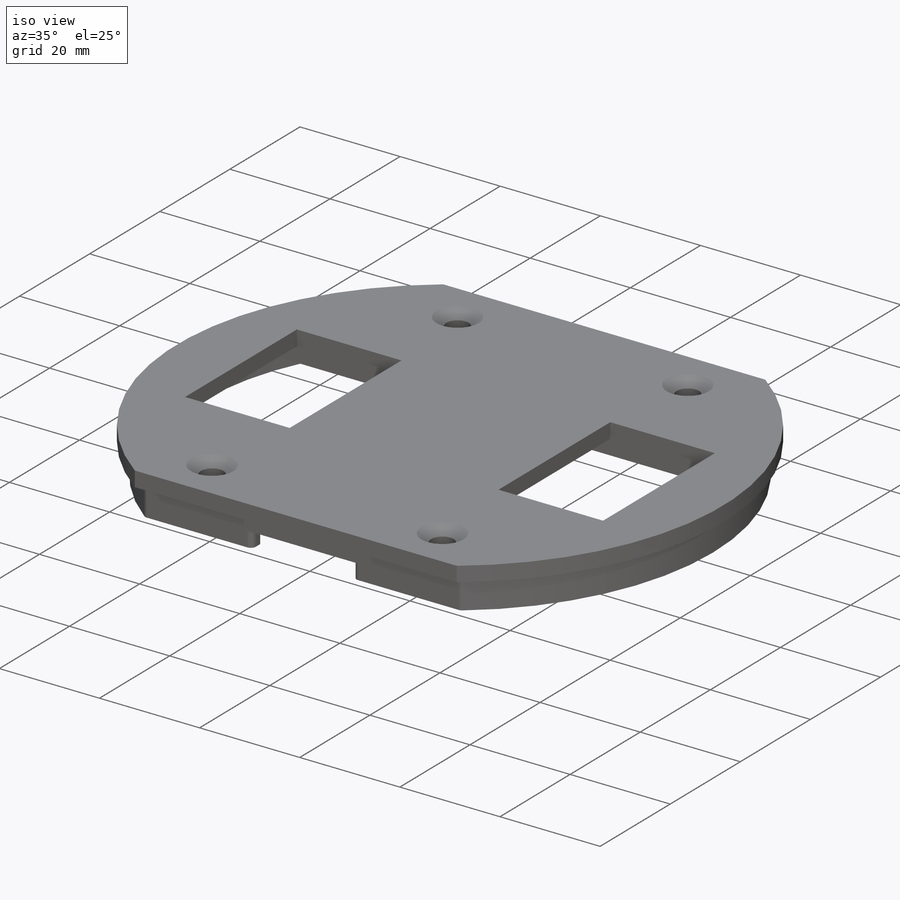
[diagram: iso view]
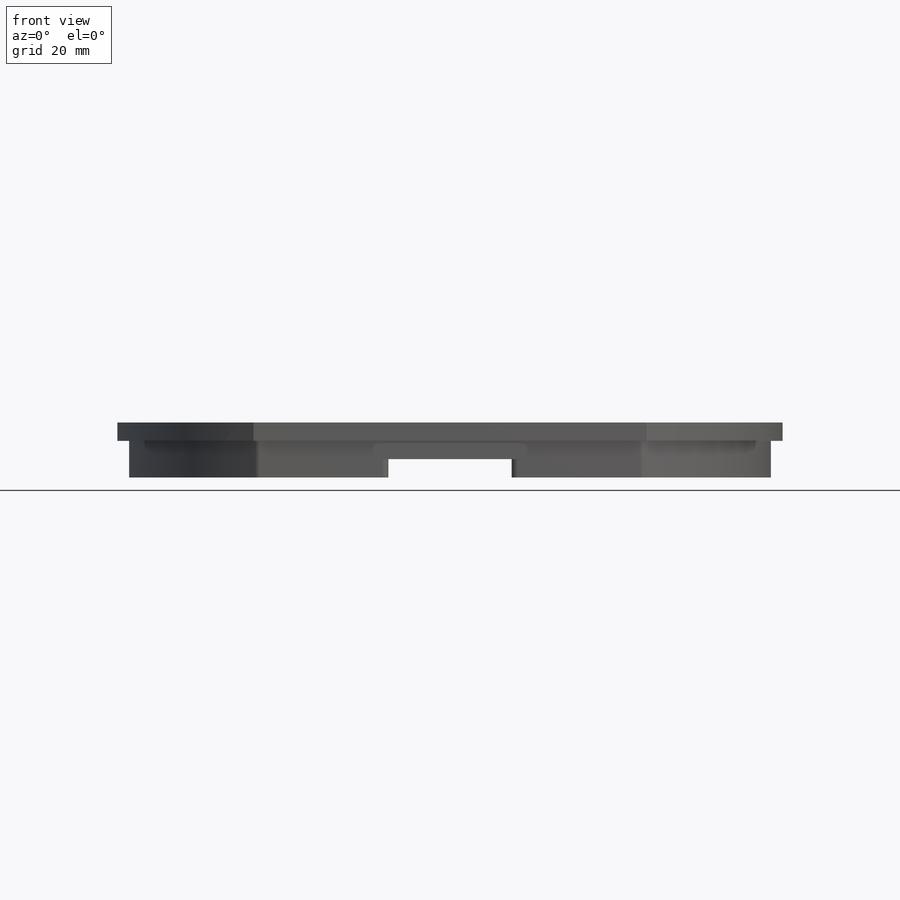
[diagram: front view]
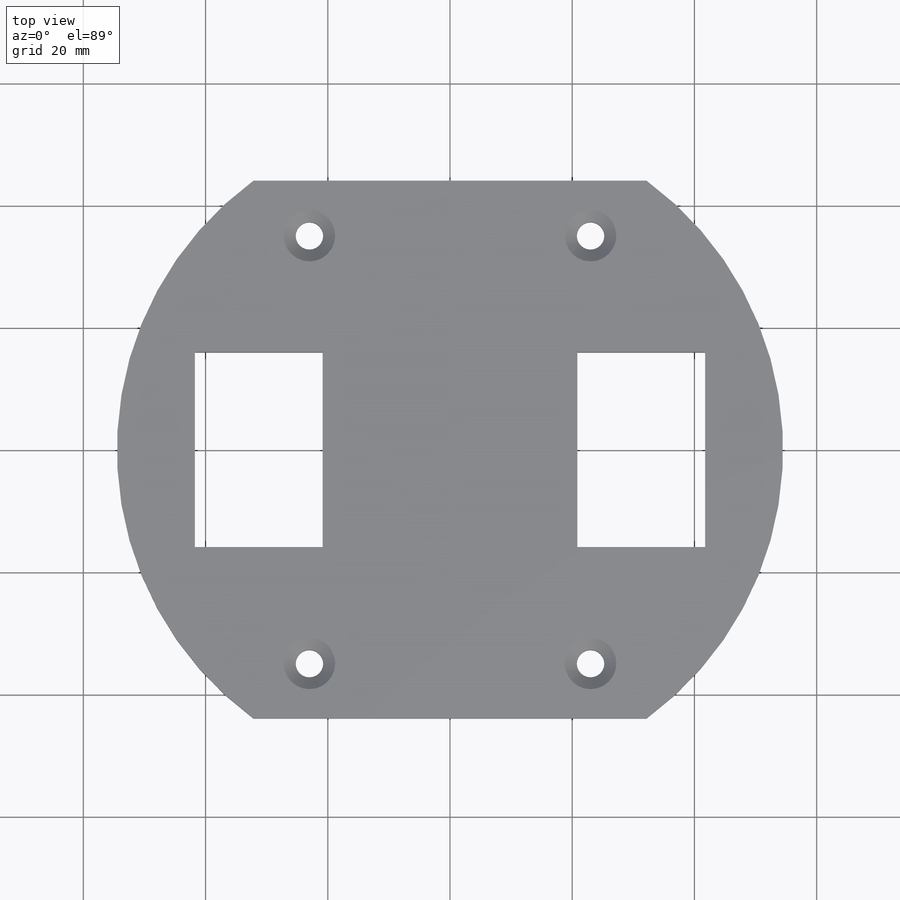
[diagram: top view]
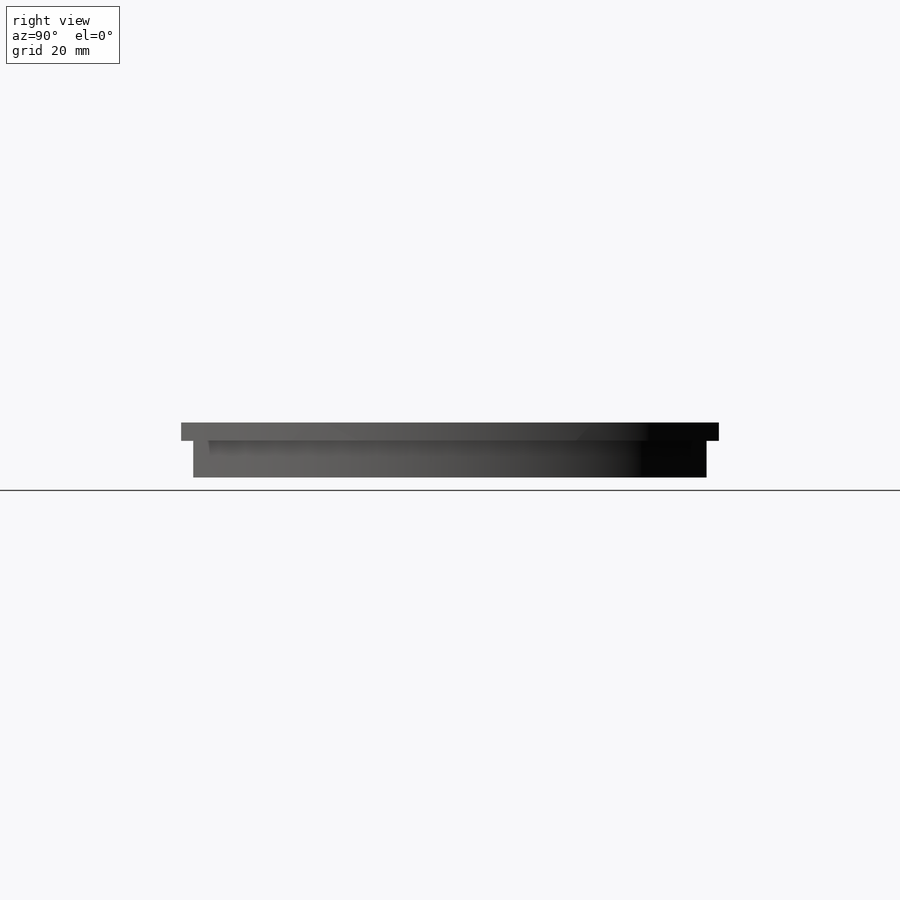
[diagram: right view]
SOLIDWORKS PART (.sldprt)
format: sldprt  version: not decoded by parser v0  size: 2,002,944 bytes
history: native  units: mm
features: sketch x17, cut_extrude x8, extrude x7, material x1, fillet x1, hole x1 + 2 further entries (+25 scaffold rows collapsed; 9 parser-record rows omitted)
feature tree (71):
  scaffold x25  (default folders/planes/origin — collapsed)
  material  "ABS"
  "a_base_t42"
  parser-record x9  (decoder bookkeeping rows leaked as tree rows — omitted from the tree; the rows remain in map.json)
  "params_finger_t42"
  sketch  "Sketch1"  dims[D1=3.0mm]
  extrude  "Support Post Boss"  Depth=3mm
  sketch  "Sketch2"  dims[D1=0.0mm D2=6.0mm]
  extrude  "Inner Boss"  [1 undecoded]
  sketch  "Sketch3"
  cut_extrude  "Clearance - Support Restoration"  [1 undecoded]
  sketch  "Sketch4"  dims[D1=0.0mm D2=2.0mm]
  extrude  "Outer Shell Lip"  Depth=3mm
  sketch  "Sketch5"  dims[D1=0.0mm D2=2.925mm]
  extrude  "Inner Boss Outer Frame"  Depth=3mm
  sketch  "Sketch6"  dims[D1=20.15mm]
  cut_extrude  "Clearance - Flange"  [1 undecoded]
  fillet  "Contouring"  Radius=1mm
  hole  "CSK for #8 Flat Head Machine Screw (100)1"  Diameter=4.3053mm Depth=9mm
  sketch  "Sketch8"
  sketch  "Sketch7"  dims[hole-wizard template sketch: 55 standard entries collapsed; hole parameters kept: c17.Thru Hole Depth=9.0mm c17.Near C'Sink Dia.=8.4328mm c17.D4=~3.666174mm c17.Near C'Sink Angle=100.0deg]
  sketch  "Sketch9"  dims[D1=1.5mm D2=31.9mm D3=38.75mm D4=~26.674948mm]
  cut_extrude  "Clearance - Flexure Base"  [1 undecoded]
  sketch  "Sketch10"  dims[D1=4.0mm D2=4.0mm D3=3.0mm]
  extrude  "Framing - Flexure Base"  [1 undecoded]
  sketch  "Sketch11"
  cut_extrude  "Clearance - Flexure Tab"  [1 undecoded]
  sketch  "Sketch12"  dims[D1=1.5mm D2=31.9mm D3=30.0mm D4=9.15mm]
  cut_extrude  "Clearance - Pivot Base"  [1 undecoded]
  sketch  "Sketch13"  dims[D1=4.0mm D2=4.0mm D3=3.0mm]
  extrude  "Framing - Pivot Base"  [1 undecoded]
  sketch  "Sketch14"
  cut_extrude  "Clearance - Pivot Tab"  [1 undecoded]
  sketch  "Sketch15"  dims[D1=1.575mm D2=31.9mm]
  cut_extrude  "Clearance - Single Base"  [1 undecoded]
  sketch  "Sketch16"  dims[D1=4.0mm D2=3.0mm]
  extrude  "Framing - Single Base"  [1 undecoded]
  sketch  "Sketch17"
  cut_extrude  "Clearance - Single Tab"  [1 undecoded]
decode coverage: 17 of 34 modeling features carry decoded parameters; 2 rows unclassified (native names shown)
note: ~ marks probable driven/reference dimensions
note: 12 parameter values undecoded
summary: no parameter record found for 12 features
note: suppression state not decoded; provenance and decode notes live in map.json
